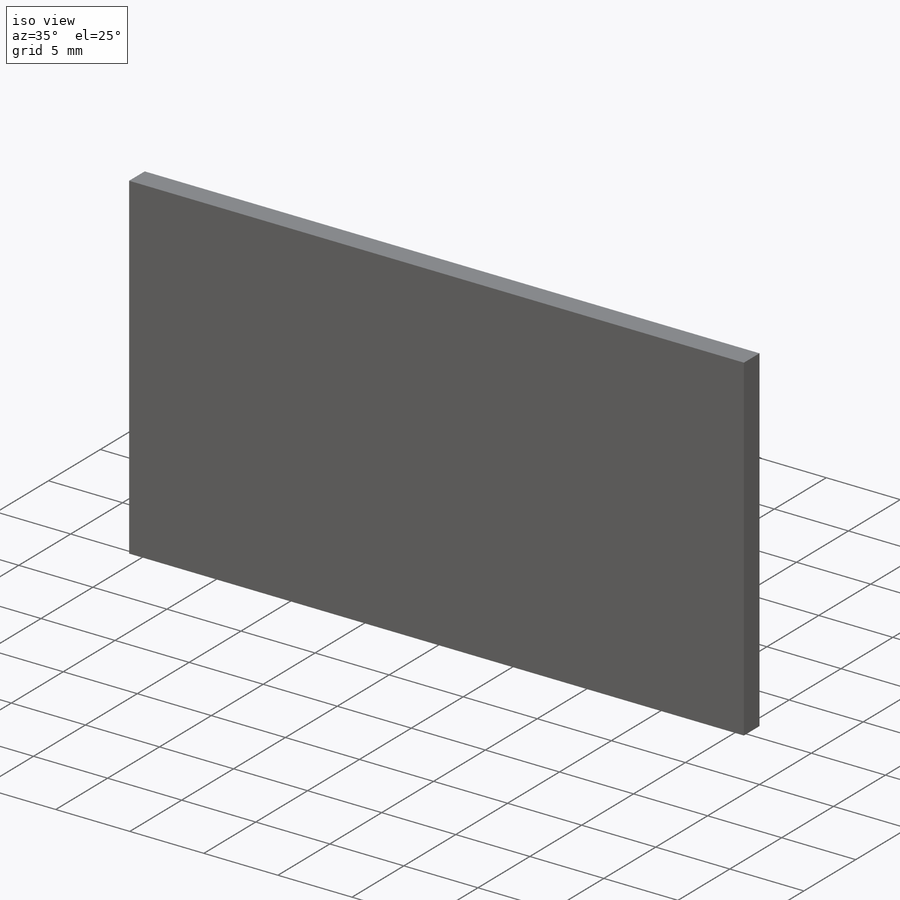
[diagram: iso view]
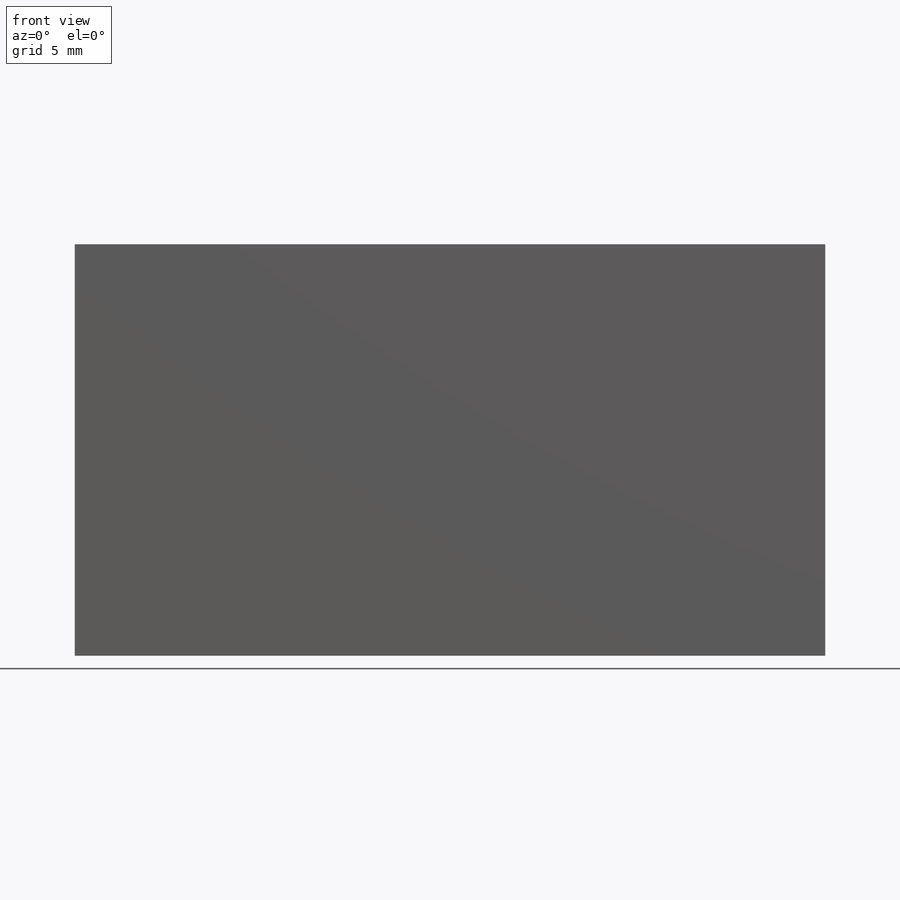
[diagram: front view]
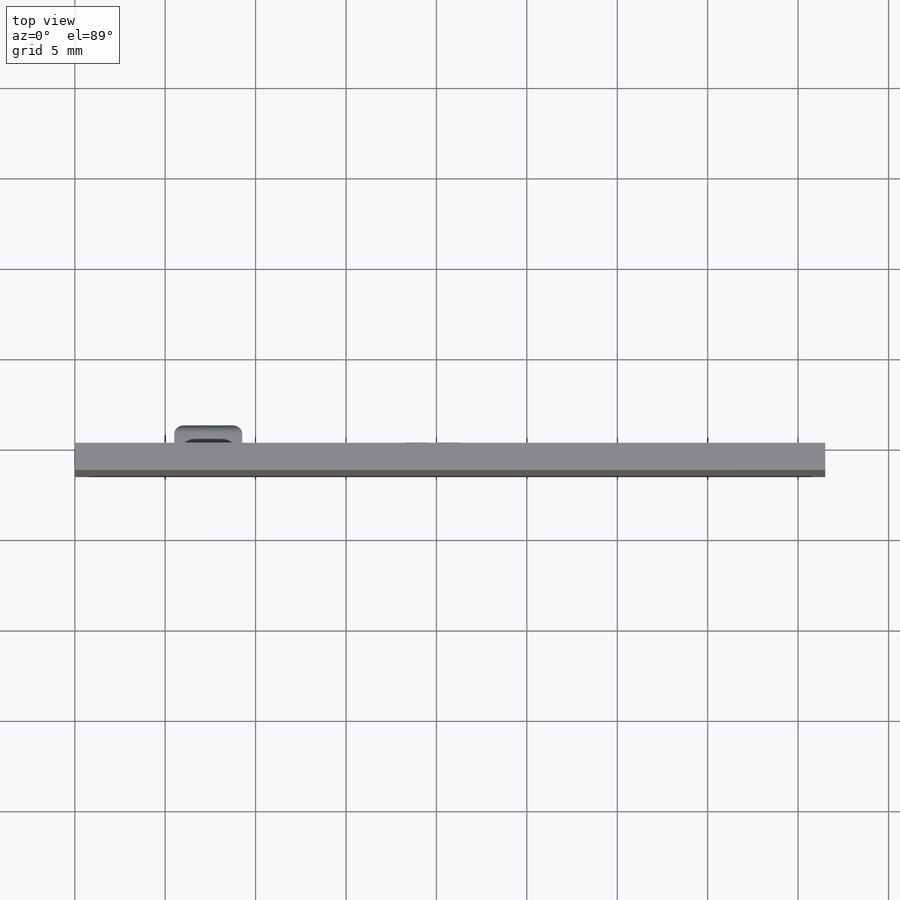
[diagram: top view]
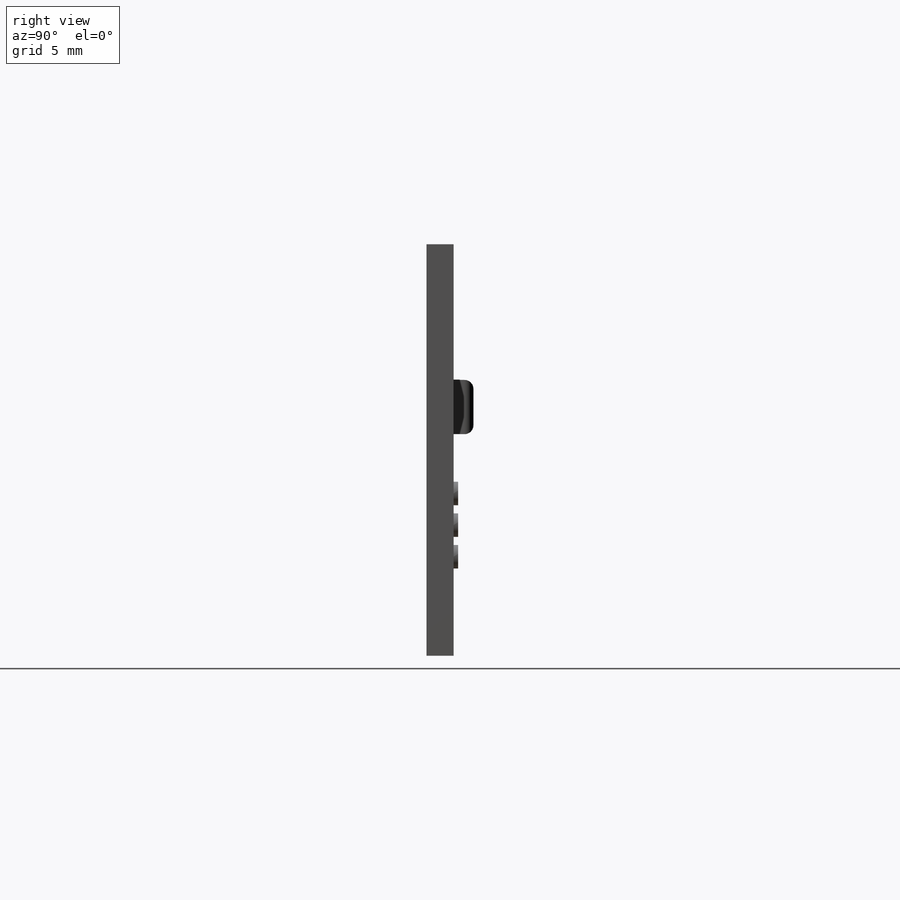
[diagram: right view]
SOLIDWORKS PART (.sldprt)
format: sldprt  version: not decoded by parser v0  size: 244,224 bytes
history: native  units: mm
features: sketch x4, extrude x3, material x1, cut_extrude x1, fillet x1 (+13 scaffold rows collapsed)
feature tree (23):
  scaffold x13  (default folders/planes/origin — collapsed)
  material  "Material <not specified>"
  sketch  "Sketch1"  dims[c1.D1=21.0mm c1.D2=40.6mm c1.D3=5.5mm c1.D4=19.75mm c1.D5=7.5mm c1.D6=4.0mm c1.D7=3.0mm c1.D8=4.75mm c1.D9=5.5mm c1.D10=6.75mm c2.D5=7.5mm]
  extrude  "Boss-Extrude1"  Depth=1.5mm
  sketch  "Sketch2"  dims[c1.D1=5.5mm c1.3.7=3.76mm c1.D3=3.0mm c2.D1=6.5mm c2.D4=6.19mm c2.D5=3.0mm]
  extrude  "Boss-Extrude3"  Depth=1.1mm
  sketch  "Sketch3"  dims[c1.D1=1.0mm c1.D3=0.5mm c2.D1=1.5mm c2.D2=~1.500213mm c3.D2=90.0deg c4.D2=1.18mm]
  cut_extrude  "Cut-Extrude1"  Depth=0.5mm
  fillet  "Fillet3"  Radius=0.5mm
  sketch  "Sketch4"  dims[c1.D1=0.25mm c1.D4=1.3mm c2.D1=18.925mm c2.D5=17.28mm c2.D2=2.0 c2.D3=3.0]
  extrude  "Boss-Extrude4"  Depth=0.25mm
decode coverage: 9 of 9 modeling features carry decoded parameters
note: ~ marks probable driven/reference dimensions
note: suppression state not decoded; provenance and decode notes live in map.json
